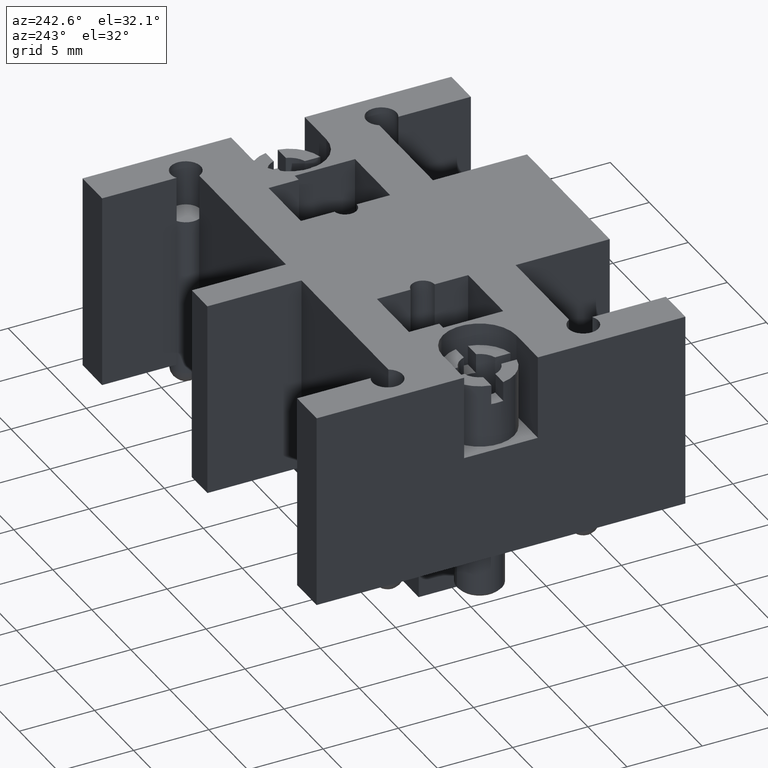
[diagram: clean part render]
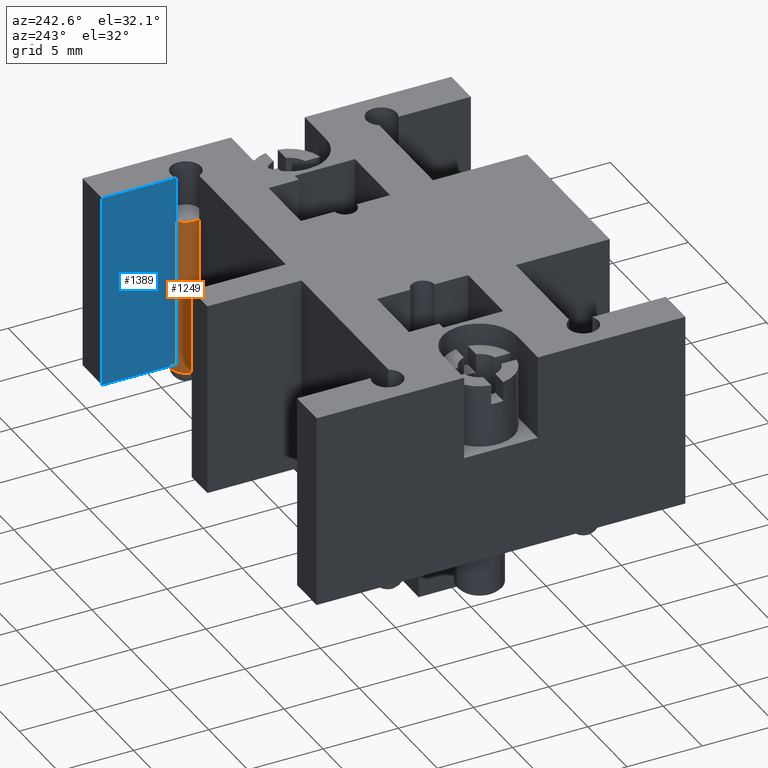
[diagram: same view with the hole feature highlighted: cylindrical wall and planar end face, labeled with their STEP entity ids]
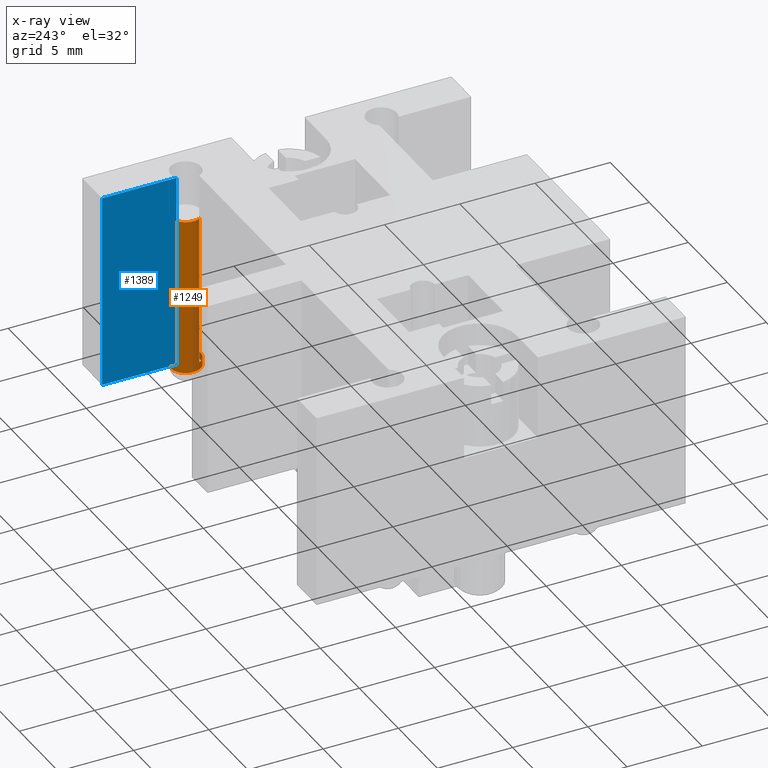
[diagram: x-ray of the same camera — body ghosted, the hole faces saturated]
A machine part, auxiliary view. The highlighted faces form one hole feature of diameter 2 mm: the cylindrical wall (entity #1249, orange) and its adjacent planar end face (entity #1389, blue) — they share a circular edge in the B-rep.
The next image is the same camera in x-ray (body ghosted, the hole faces saturated) — the bore reads through the body.
Wall:
#1193=CARTESIAN_POINT('',(3.947977132707660,12.050417446610879,-0.500000000000000));
#1194=VERTEX_POINT('',#1193);
#1195=CARTESIAN_POINT('',(2.947977132707660,12.050417446610879,-0.500000000000000));
#1196=DIRECTION('',(0.0,0.0,-1.0));
#1197=DIRECTION('',(-1.0,0.0,0.0));
#1198=AXIS2_PLACEMENT_3D('',#1195,#1196,#1197);
#1199=CIRCLE('',#1198,1.0);
#1200=EDGE_CURVE('',#1194,#1194,#1199,.T.);
#1205=CARTESIAN_POINT('',(2.947977132707660,12.050417446610879,10.0));
#1206=DIRECTION('',(0.0,0.0,-1.0));
#1207=DIRECTION('',(-1.0,0.0,0.0));
#1208=AXIS2_PLACEMENT_3D('',#1205,#1206,#1207);
#1209=CYLINDRICAL_SURFACE('',#1208,1.0);
#1210=CARTESIAN_POINT('',(2.047920973446065,11.614643525666468,10.0));
#1211=VERTEX_POINT('',#1210);
#1212=CARTESIAN_POINT('',(2.047920973446065,11.614643525666468,0.0));
#1213=VERTEX_POINT('',#1212);
#1214=CARTESIAN_POINT('',(2.047920973446065,11.614643525666468,10.0));
#1215=DIRECTION('',(0.0,0.0,-1.0));
#1216=VECTOR('',#1215,10.0);
#1217=LINE('',#1214,#1216);
#1218=EDGE_CURVE('',#1211,#1213,#1217,.T.);
#1219=ORIENTED_EDGE('',*,*,#1218,.F.);
#1220=CARTESIAN_POINT('',(2.447977132707657,12.916442850395315,10.0));
#1221=VERTEX_POINT('',#1220);
#1222=CARTESIAN_POINT('',(2.947977132707660,12.050417446610879,10.0));
#1223=DIRECTION('',(0.0,0.0,-1.0));
#1224=DIRECTION('',(-1.0,0.0,0.0));
#1225=AXIS2_PLACEMENT_3D('',#1222,#1223,#1224);
#1226=CIRCLE('',#1225,1.0);
#1227=EDGE_CURVE('',#1211,#1221,#1226,.T.);
#1228=ORIENTED_EDGE('',*,*,#1227,.T.);
#1229=CARTESIAN_POINT('',(2.447977132707657,12.916442850395315,0.0));
#1230=VERTEX_POINT('',#1229);
#1231=CARTESIAN_POINT('',(2.447977132707657,12.916442850395315,0.0));
#1232=DIRECTION('',(0.0,0.0,1.0));
#1233=VECTOR('',#1232,10.0);
#1234=LINE('',#1231,#1233);
#1235=EDGE_CURVE('',#1230,#1221,#1234,.T.);
#1236=ORIENTED_EDGE('',*,*,#1235,.F.);
#1237=CARTESIAN_POINT('',(2.947977132707660,12.050417446610879,0.0));
#1238=DIRECTION('',(0.0,0.0,1.0));
#1239=DIRECTION('',(-1.0,0.0,0.0));
#1240=AXIS2_PLACEMENT_3D('',#1237,#1238,#1239);
#1241=CIRCLE('',#1240,1.0);
#1242=EDGE_CURVE('',#1213,#1230,#1241,.T.);
#1243=ORIENTED_EDGE('',*,*,#1242,.F.);
#1244=EDGE_LOOP('',(#1219,#1228,#1236,#1243));
#1245=FACE_OUTER_BOUND('',#1244,.T.);
#1246=ORIENTED_EDGE('',*,*,#1200,.F.);
#1247=EDGE_LOOP('',(#1246));
#1248=FACE_BOUND('',#1247,.T.);
#1249=ADVANCED_FACE('',(#1245,#1248),#1209,.T.);
End face:
#1220=CARTESIAN_POINT('',(2.447977132707657,12.916442850395315,10.0));
#1221=VERTEX_POINT('',#1220);
#1229=CARTESIAN_POINT('',(2.447977132707657,12.916442850395315,0.0));
#1230=VERTEX_POINT('',#1229);
#1231=CARTESIAN_POINT('',(2.447977132707657,12.916442850395315,0.0));
#1232=DIRECTION('',(0.0,0.0,1.0));
#1233=VECTOR('',#1232,10.0);
#1234=LINE('',#1231,#1233);
#1235=EDGE_CURVE('',#1230,#1221,#1234,.T.);
#1351=CARTESIAN_POINT('',(2.447977132707657,11.614643525666466,0.0));
#1352=DIRECTION('',(-1.0,0.0,0.0));
#1353=DIRECTION('',(0.0,0.0,1.0));
#1354=AXIS2_PLACEMENT_3D('',#1351,#1352,#1353);
#1355=PLANE('',#1354);
#1356=ORIENTED_EDGE('',*,*,#1235,.T.);
#1357=CARTESIAN_POINT('',(2.447977132707657,12.916442850395315,13.0));
#1358=VERTEX_POINT('',#1357);
#1359=CARTESIAN_POINT('',(2.447977132707657,12.916442850395315,10.0));
#1360=DIRECTION('',(0.0,0.0,1.0));
#1361=VECTOR('',#1360,3.0);
#1362=LINE('',#1359,#1361);
#1363=EDGE_CURVE('',#1221,#1358,#1362,.T.);
#1364=ORIENTED_EDGE('',*,*,#1363,.T.);
#1365=CARTESIAN_POINT('',(2.447977132707656,17.864643525666459,13.0));
#1366=VERTEX_POINT('',#1365);
#1367=CARTESIAN_POINT('',(2.447977132707657,12.916442850395315,13.0));
#1368=DIRECTION('',(0.0,1.0,0.0));
#1369=VECTOR('',#1368,4.948200675271144);
#1370=LINE('',#1367,#1369);
#1371=EDGE_CURVE('',#1358,#1366,#1370,.T.);
#1372=ORIENTED_EDGE('',*,*,#1371,.T.);
#1373=CARTESIAN_POINT('',(2.447977132707656,17.864643525666459,0.0));
#1374=VERTEX_POINT('',#1373);
#1375=CARTESIAN_POINT('',(2.447977132707656,17.864643525666459,0.0));
#1376=DIRECTION('',(0.0,0.0,1.0));
#1377=VECTOR('',#1376,13.0);
#1378=LINE('',#1375,#1377);
#1379=EDGE_CURVE('',#1374,#1366,#1378,.T.);
#1380=ORIENTED_EDGE('',*,*,#1379,.F.);
#1381=CARTESIAN_POINT('',(2.447977132707657,12.916442850395315,0.0));
#1382=DIRECTION('',(0.0,1.0,0.0));
#1383=VECTOR('',#1382,4.948200675271144);
#1384=LINE('',#1381,#1383);
#1385=EDGE_CURVE('',#1230,#1374,#1384,.T.);
#1386=ORIENTED_EDGE('',*,*,#1385,.F.);
#1387=EDGE_LOOP('',(#1356,#1364,#1372,#1380,#1386));
#1388=FACE_OUTER_BOUND('',#1387,.T.);
#1389=ADVANCED_FACE('',(#1388),#1355,.T.);